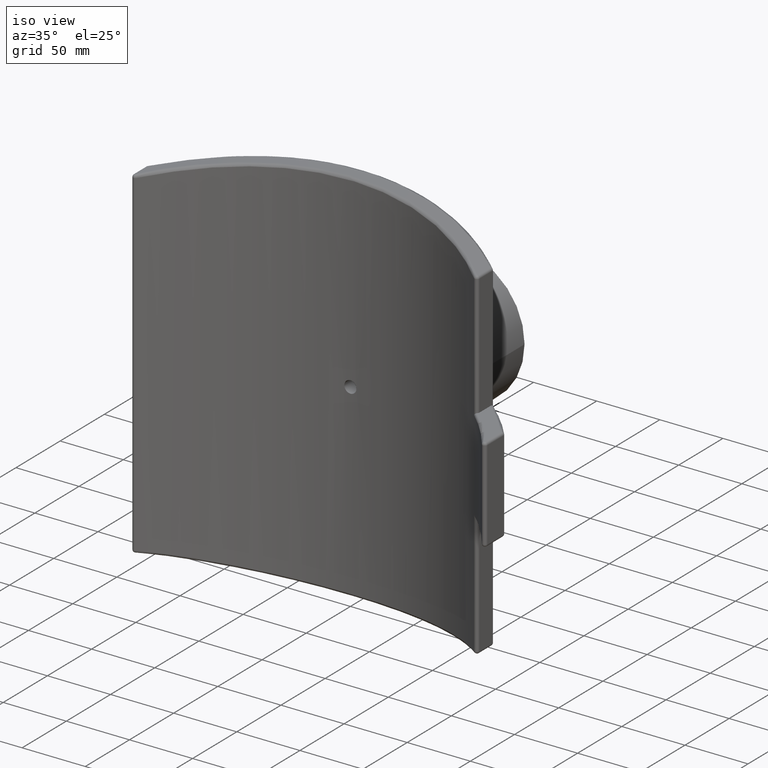
[diagram: clean part render]
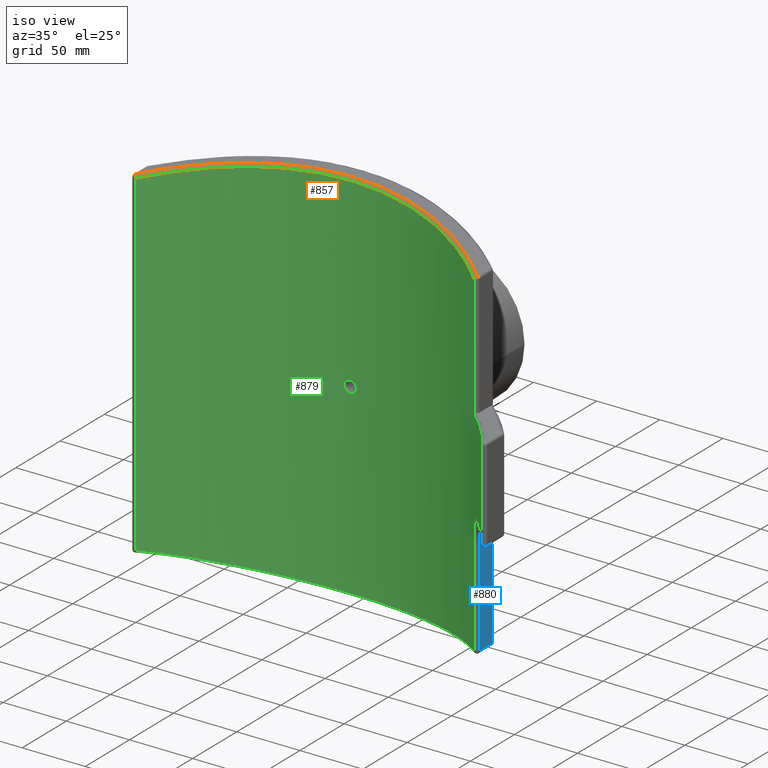
[diagram: same view with three faces highlighted in distinct colors, each labeled with its STEP entity id]
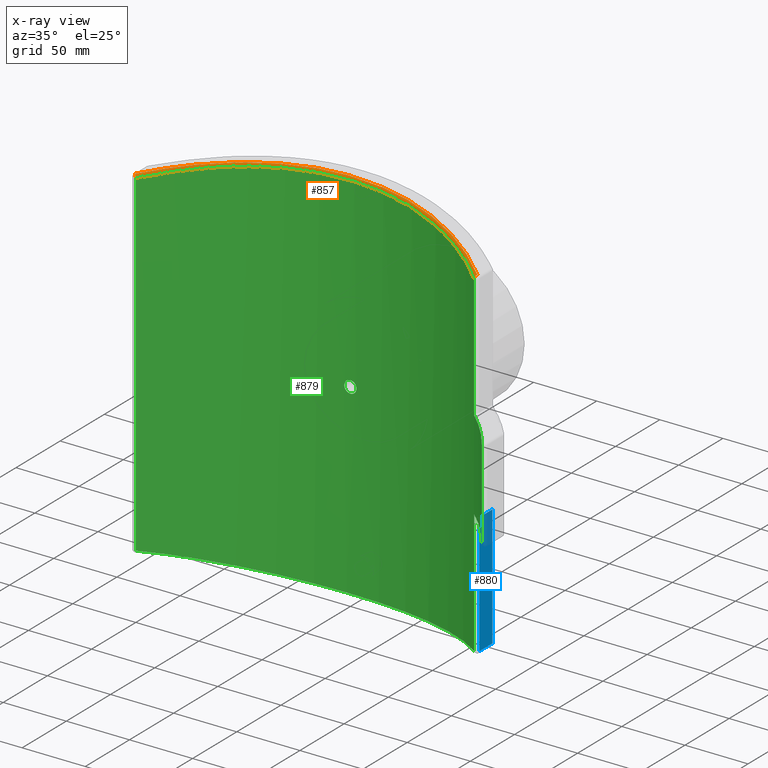
[diagram: x-ray of the same camera — body ghosted, the three highlighted faces saturated]
A machine part, iso view with three faces highlighted in distinct colors.
The next image is the same camera in x-ray (body ghosted, the three faces saturated) — at least one of them is partly hidden behind the body in this view.
Their STEP definitions:

[orange] entity #857 — the highlighted face is a freeform B-spline surface patch.
#92=B_SPLINE_SURFACE_WITH_KNOTS('',3,3,((#1989,#1990,#1991,#1992,#1993,
#1994,#1995,#1996,#1997,#1998),(#1999,#2000,#2001,#2002,#2003,#2004,#2005,
#2006,#2007,#2008),(#2009,#2010,#2011,#2012,#2013,#2014,#2015,#2016,#2017,
#2018),(#2019,#2020,#2021,#2022,#2023,#2024,#2025,#2026,#2027,#2028),(#2029,
#2030,#2031,#2032,#2033,#2034,#2035,#2036,#2037,#2038),(#2039,#2040,#2041,
#2042,#2043,#2044,#2045,#2046,#2047,#2048)),.UNSPECIFIED.,.F.,.F.,.F.,(4,
1,1,4),(4,1,1,1,1,1,1,4),(0.,0.285714285714286,0.571428571428571,1.),(5.62901959477832,
9.88838150774072,14.1477434207031,18.4071053336655,22.6664672466279,26.9258291595903,
31.1851910725527,35.4445529855151),.UNSPECIFIED.);
#106=B_SPLINE_CURVE_WITH_KNOTS('',3,(#2049,#2050,#2051,#2052,#2053,#2054,
#2055,#2056,#2057,#2058),.UNSPECIFIED.,.F.,.F.,(4,1,1,1,1,1,1,4),(-35.4445529855151,
-31.1851910725527,-26.9258291595903,-22.6664672466279,-18.4071053336655,
-14.1477434207031,-9.88838150774072,-5.62901959477832),.UNSPECIFIED.);
#107=B_SPLINE_CURVE_WITH_KNOTS('',3,(#2059,#2060,#2061,#2062,#2063,#2064,
#2065,#2066,#2067,#2068),.UNSPECIFIED.,.F.,.F.,(4,1,1,1,1,1,1,4),(5.62901959484431,
9.88838150779185,14.1477434207394,18.4071053336869,22.6664672466345,26.925829159582,
31.1851910725295,35.4445529854771),.UNSPECIFIED.);
#220=FACE_OUTER_BOUND('',#307,.T.);
#307=EDGE_LOOP('',(#699,#700,#701,#702));
#378=CIRCLE('',#961,1.99999999999997);
#387=CIRCLE('',#975,1.99999999999997);
#448=VERTEX_POINT('',#1897);
#450=VERTEX_POINT('',#1900);
#456=VERTEX_POINT('',#1983);
#458=VERTEX_POINT('',#1986);
#530=EDGE_CURVE('',#450,#448,#378,.F.);
#544=EDGE_CURVE('',#458,#456,#387,.F.);
#546=EDGE_CURVE('',#448,#458,#106,.T.);
#547=EDGE_CURVE('',#456,#450,#107,.T.);
#699=ORIENTED_EDGE('',*,*,#530,.T.);
#700=ORIENTED_EDGE('',*,*,#546,.T.);
#701=ORIENTED_EDGE('',*,*,#544,.T.);
#702=ORIENTED_EDGE('',*,*,#547,.T.);
#857=ADVANCED_FACE('',(#220),#92,.F.);
#961=AXIS2_PLACEMENT_3D('',#1901,#1171,#1172);
#975=AXIS2_PLACEMENT_3D('',#1987,#1203,#1204);
#1171=DIRECTION('center_axis',(-0.733164606172306,-0.660902128207664,-0.160243680645407));
#1172=DIRECTION('ref_axis',(-0.213523833955914,0.,0.976937854898032));
#1203=DIRECTION('center_axis',(0.733164606013992,-0.660902128473588,-0.160243680272979));
#1204=DIRECTION('ref_axis',(-0.669554455445553,-0.742762971070186,0.));
#1897=CARTESIAN_POINT('',(-133.910891089109,148.552594214039,133.392004877097));
#1900=CARTESIAN_POINT('',(-135.677047667913,150.038120156738,135.345880586893));
#1901=CARTESIAN_POINT('Origin',(-135.249999999555,150.03812015658,133.392004877194));
#1983=CARTESIAN_POINT('',(135.677047667428,150.038120156615,135.345880586999));
#1986=CARTESIAN_POINT('',(133.910891089109,148.552594214039,133.392004877097));
#1987=CARTESIAN_POINT('Origin',(135.25,150.038120156179,133.392004877097));
#1989=CARTESIAN_POINT('Ctrl Pts',(135.677047667913,150.038120156179,135.345880586893));
#1990=CARTESIAN_POINT('Ctrl Pts',(125.234803078292,159.421524046993,137.628183487441));
#1991=CARTESIAN_POINT('Ctrl Pts',(102.368545638348,176.033588476469,142.070115242369));
#1992=CARTESIAN_POINT('Ctrl Pts',(63.4404818662849,193.413576810373,147.266424298659));
#1993=CARTESIAN_POINT('Ctrl Pts',(21.4962169969167,202.373410710739,150.118851007305));
#1994=CARTESIAN_POINT('Ctrl Pts',(-21.4959207078474,202.371870863032,150.11747830854));
#1995=CARTESIAN_POINT('Ctrl Pts',(-63.4408506636497,193.414865691707,147.267554194443));
#1996=CARTESIAN_POINT('Ctrl Pts',(-102.368789816726,176.032600149156,142.069382741749));
#1997=CARTESIAN_POINT('Ctrl Pts',(-125.234981340637,159.421363860402,137.628144525639));
#1998=CARTESIAN_POINT('Ctrl Pts',(-135.677047667922,150.038120156171,135.345880586891));
#1999=CARTESIAN_POINT('Ctrl Pts',(135.466223747786,149.79307261536,135.39195919004));
#2000=CARTESIAN_POINT('Ctrl Pts',(125.042066373219,159.165115673108,137.66657321619));
#2001=CARTESIAN_POINT('Ctrl Pts',(102.213827574512,175.75882298581,142.094148706054));
#2002=CARTESIAN_POINT('Ctrl Pts',(63.3462734883247,193.121986905845,147.27451591786));
#2003=CARTESIAN_POINT('Ctrl Pts',(21.464586344003,202.073880860785,150.118495393355));
#2004=CARTESIAN_POINT('Ctrl Pts',(-21.4642900187345,202.072338110463,150.117131398075));
#2005=CARTESIAN_POINT('Ctrl Pts',(-63.3466428161991,193.123278087263,147.27563854636));
#2006=CARTESIAN_POINT('Ctrl Pts',(-102.214069958902,175.757833769964,142.093418740732));
#2007=CARTESIAN_POINT('Ctrl Pts',(-125.042244326792,159.164955680461,137.666534385647));
#2008=CARTESIAN_POINT('Ctrl Pts',(-135.466223747795,149.793072615352,135.391959190038));
#2009=CARTESIAN_POINT('Ctrl Pts',(135.010572410694,149.303993064092,135.32435142809));
#2010=CARTESIAN_POINT('Ctrl Pts',(124.626140023173,158.653317394397,137.587294717861));
#2011=CARTESIAN_POINT('Ctrl Pts',(101.88081813863,175.210289743969,141.993123095802));
#2012=CARTESIAN_POINT('Ctrl Pts',(63.1442038635323,192.539758337245,147.149727604033));
#2013=CARTESIAN_POINT('Ctrl Pts',(21.3968452965855,201.475740980187,149.981202323462));
#2014=CARTESIAN_POINT('Ctrl Pts',(-21.3965503188491,201.474190476697,149.97983971421));
#2015=CARTESIAN_POINT('Ctrl Pts',(-63.1445749454486,192.541055101045,147.150848449706));
#2016=CARTESIAN_POINT('Ctrl Pts',(-101.881065755506,175.209299044657,141.992396273576));
#2017=CARTESIAN_POINT('Ctrl Pts',(-124.62631729859,158.653157789587,137.587256086552));
#2018=CARTESIAN_POINT('Ctrl Pts',(-135.010572410703,149.303993064084,135.324351428088));
#2019=CARTESIAN_POINT('Ctrl Pts',(134.276680867948,148.646843249766,134.676890059353));
#2020=CARTESIAN_POINT('Ctrl Pts',(123.953389435953,157.960627327435,136.936142708231));
#2021=CARTESIAN_POINT('Ctrl Pts',(101.338411135481,174.45724949742,141.335121512438));
#2022=CARTESIAN_POINT('Ctrl Pts',(62.8125996260237,191.727211233487,146.484222898994));
#2023=CARTESIAN_POINT('Ctrl Pts',(21.2853275186399,200.633663937944,149.311750254444));
#2024=CARTESIAN_POINT('Ctrl Pts',(-21.2850304352525,200.632115839363,149.310390528003));
#2025=CARTESIAN_POINT('Ctrl Pts',(-62.8129731353901,191.728507241331,146.485341358955));
#2026=CARTESIAN_POINT('Ctrl Pts',(-101.338642333052,174.456258904186,141.334395740537));
#2027=CARTESIAN_POINT('Ctrl Pts',(-123.953565667617,157.960468329342,136.936104139926));
#2028=CARTESIAN_POINT('Ctrl Pts',(-134.276680867957,148.646843249758,134.676890059351));
#2029=CARTESIAN_POINT('Ctrl Pts',(133.969187015907,148.500044074839,133.875462376056));
#2030=CARTESIAN_POINT('Ctrl Pts',(123.665007550454,157.796184239789,136.144482113502));
#2031=CARTESIAN_POINT('Ctrl Pts',(101.094899026683,174.257940962931,140.561457367451));
#2032=CARTESIAN_POINT('Ctrl Pts',(62.6575343805526,191.486568141245,145.72962486548));
#2033=CARTESIAN_POINT('Ctrl Pts',(21.231929553342,200.370250013673,148.567015303722));
#2034=CARTESIAN_POINT('Ctrl Pts',(-21.2316426427566,200.368697886691,148.565662514953));
#2035=CARTESIAN_POINT('Ctrl Pts',(-62.6579032199466,191.487860840212,145.730737887673));
#2036=CARTESIAN_POINT('Ctrl Pts',(-101.095178953505,174.256959890338,140.560729979536));
#2037=CARTESIAN_POINT('Ctrl Pts',(-123.665183455852,157.7960255429,136.14444337846));
#2038=CARTESIAN_POINT('Ctrl Pts',(-133.969187015917,148.500044074831,133.875462376054));
#2039=CARTESIAN_POINT('Ctrl Pts',(133.910891089109,148.552594214039,133.392004877097));
#2040=CARTESIAN_POINT('Ctrl Pts',(123.604576926162,157.843093115834,135.667124159281));
#2041=CARTESIAN_POINT('Ctrl Pts',(101.035977724692,174.29068165987,140.095074797805));
#2042=CARTESIAN_POINT('Ctrl Pts',(62.6146544596855,191.49859090136,145.275028312001));
#2043=CARTESIAN_POINT('Ctrl Pts',(21.2163930641213,200.369713574989,148.118476920115));
#2044=CARTESIAN_POINT('Ctrl Pts',(-21.2161006319526,200.368188973299,148.117108541962));
#2045=CARTESIAN_POINT('Ctrl Pts',(-62.6150184562832,191.499867021492,145.276154651404));
#2046=CARTESIAN_POINT('Ctrl Pts',(-101.036218724514,174.289703117976,140.094344602753));
#2047=CARTESIAN_POINT('Ctrl Pts',(-123.604752868002,157.842934515249,135.667085320113));
#2048=CARTESIAN_POINT('Ctrl Pts',(-133.910891089118,148.552594214031,133.392004877095));
#2049=CARTESIAN_POINT('Ctrl Pts',(-133.910891089118,148.552594214031,133.392004877095));
#2050=CARTESIAN_POINT('Ctrl Pts',(-123.604752868002,157.842934515249,135.667085320113));
#2051=CARTESIAN_POINT('Ctrl Pts',(-101.036218724514,174.289703117976,140.094344602753));
#2052=CARTESIAN_POINT('Ctrl Pts',(-62.6150184562832,191.499867021492,145.276154651404));
#2053=CARTESIAN_POINT('Ctrl Pts',(-21.2161006319526,200.368188973299,148.117108541962));
#2054=CARTESIAN_POINT('Ctrl Pts',(21.2163930641213,200.369713574989,148.118476920115));
#2055=CARTESIAN_POINT('Ctrl Pts',(62.6146544596855,191.49859090136,145.275028312001));
#2056=CARTESIAN_POINT('Ctrl Pts',(101.035977724692,174.29068165987,140.095074797805));
#2057=CARTESIAN_POINT('Ctrl Pts',(123.604576926162,157.843093115834,135.667124159281));
#2058=CARTESIAN_POINT('Ctrl Pts',(133.910891089109,148.552594214039,133.392004877097));
#2059=CARTESIAN_POINT('Ctrl Pts',(135.677047667428,150.038120156615,135.345880586999));
#2060=CARTESIAN_POINT('Ctrl Pts',(125.234803077776,159.421524047396,137.628183487545));
#2061=CARTESIAN_POINT('Ctrl Pts',(102.368545638348,176.033588476469,142.070115242369));
#2062=CARTESIAN_POINT('Ctrl Pts',(63.4404818662849,193.413576810373,147.266424298659));
#2063=CARTESIAN_POINT('Ctrl Pts',(21.4962169969167,202.373410710739,150.118851007305));
#2064=CARTESIAN_POINT('Ctrl Pts',(-21.4959207078474,202.371870863032,150.11747830854));
#2065=CARTESIAN_POINT('Ctrl Pts',(-63.4408506636497,193.414865691707,147.267554194443));
#2066=CARTESIAN_POINT('Ctrl Pts',(-102.368789816726,176.032600149156,142.069382741749));
#2067=CARTESIAN_POINT('Ctrl Pts',(-125.234981340339,159.421363860634,137.628144525699));
#2068=CARTESIAN_POINT('Ctrl Pts',(-135.677047667642,150.038120156422,135.345880586952));

[blue] entity #880 — the highlighted planar face has unit normal (1, 0, 0).
#33=LINE('',#1776,#63);
#54=LINE('',#2235,#84);
#55=LINE('',#2238,#85);
#58=LINE('',#2243,#88);
#63=VECTOR('',#1104,96.3515375358321);
#84=VECTOR('',#1259,95.8920048770969);
#85=VECTOR('',#1264,14.5110746154759);
#88=VECTOR('',#1271,12.8466166978308);
#114=B_SPLINE_CURVE_WITH_KNOTS('',3,(#2226,#2227,#2228,#2229,#2230,#2231),
 .UNSPECIFIED.,.F.,.F.,(4,2,4),(-0.3426547615418,-0.237671393353548,-0.178267981115463),
 .UNSPECIFIED.);
#154=PLANE('',#1006);
#243=FACE_OUTER_BOUND('',#332,.T.);
#332=EDGE_LOOP('',(#800,#801,#802,#803,#804));
#429=VERTEX_POINT('',#1771);
#430=VERTEX_POINT('',#1775);
#431=VERTEX_POINT('',#1788);
#466=VERTEX_POINT('',#2224);
#467=VERTEX_POINT('',#2234);
#503=EDGE_CURVE('',#430,#429,#33,.T.);
#574=EDGE_CURVE('',#466,#430,#114,.T.);
#576=EDGE_CURVE('',#431,#467,#54,.T.);
#578=EDGE_CURVE('',#429,#431,#55,.T.);
#581=EDGE_CURVE('',#466,#467,#58,.T.);
#800=ORIENTED_EDGE('',*,*,#503,.F.);
#801=ORIENTED_EDGE('',*,*,#574,.F.);
#802=ORIENTED_EDGE('',*,*,#581,.T.);
#803=ORIENTED_EDGE('',*,*,#576,.F.);
#804=ORIENTED_EDGE('',*,*,#578,.F.);
#880=ADVANCED_FACE('',(#243),#154,.T.);
#1006=AXIS2_PLACEMENT_3D('',#2250,#1284,#1285);
#1104=DIRECTION('',(0.,0.,-1.));
#1259=DIRECTION('',(0.,0.,1.));
#1264=DIRECTION('',(0.,-1.,0.));
#1271=DIRECTION('',(0.,-1.,0.));
#1284=DIRECTION('center_axis',(1.,0.,0.));
#1285=DIRECTION('ref_axis',(0.,1.,0.));
#1771=CARTESIAN_POINT('',(137.25,164.549194771655,-133.392004877097));
#1775=CARTESIAN_POINT('',(137.25,164.549194771655,-37.0404673412648));
#1776=CARTESIAN_POINT('',(137.25,164.549194771655,0.));
#1788=CARTESIAN_POINT('',(137.25,150.038120156179,-133.392004877097));
#2224=CARTESIAN_POINT('',(137.25,162.88473685401,-37.5));
#2226=CARTESIAN_POINT('Ctrl Pts',(137.25,162.88473685401,-37.5));
#2227=CARTESIAN_POINT('Ctrl Pts',(137.25,163.234681414637,-37.5));
#2228=CARTESIAN_POINT('Ctrl Pts',(137.25,163.649187455461,-37.4327031675438));
#2229=CARTESIAN_POINT('Ctrl Pts',(137.25,164.165752159976,-37.2499010546377));
#2230=CARTESIAN_POINT('Ctrl Pts',(137.25,164.368245943333,-37.1555248492732));
#2231=CARTESIAN_POINT('Ctrl Pts',(137.25,164.549194771655,-37.0404673412648));
#2234=CARTESIAN_POINT('',(137.25,150.038120156179,-37.5));
#2235=CARTESIAN_POINT('',(137.25,150.038120156179,0.));
#2238=CARTESIAN_POINT('',(137.25,0.,-133.392004877097));
#2243=CARTESIAN_POINT('',(137.25,141.631632000128,-37.5));
#2250=CARTESIAN_POINT('Origin',(137.25,145.473150443647,0.));

[green] entity #879 — the highlighted cylindrical surface (partial cylindrical patch) has radius 200 mm, axis along (0, 0, 1).
#37=LINE('',#1978,#67);
#41=LINE('',#2073,#71);
#48=LINE('',#2110,#78);
#53=LINE('',#2233,#83);
#67=VECTOR('',#1194,71.);
#71=VECTOR('',#1210,97.8920048770969);
#78=VECTOR('',#1233,266.784009754194);
#83=VECTOR('',#1258,97.8920048770969);
#101=B_SPLINE_CURVE_WITH_KNOTS('',3,(#1666,#1667,#1668,#1669,#1670,#1671,
#1672,#1673,#1674,#1675,#1676,#1677,#1678,#1679,#1680,#1681,#1682,#1683,
#1684,#1685,#1686,#1687,#1688,#1689,#1690,#1691,#1692,#1693,#1694,#1695,
#1696,#1697,#1698,#1699),.UNSPECIFIED.,.T.,.F.,(4,2,2,2,2,2,2,2,2,2,2,2,
2,2,2,2,4),(0.,0.180817060233591,0.361634120467183,0.542451178676776,0.723268236886369,
0.904085295095962,1.08490235330556,1.26571941353915,1.44653647377274,1.62735353400633,
1.80817059423992,1.98898765244951,2.16980471065911,2.3506217688687,2.53143882707829,
2.71225588731188,2.89307294754548),.UNSPECIFIED.);
#106=B_SPLINE_CURVE_WITH_KNOTS('',3,(#2049,#2050,#2051,#2052,#2053,#2054,
#2055,#2056,#2057,#2058),.UNSPECIFIED.,.F.,.F.,(4,1,1,1,1,1,1,4),(-35.4445529855151,
-31.1851910725527,-26.9258291595903,-22.6664672466279,-18.4071053336655,
-14.1477434207031,-9.88838150774072,-5.62901959477832),.UNSPECIFIED.);
#112=B_SPLINE_CURVE_WITH_KNOTS('',3,(#2203,#2204,#2205,#2206,#2207,#2208,
#2209,#2210,#2211,#2212),.UNSPECIFIED.,.F.,.F.,(4,1,1,1,1,1,1,4),(-33.5496110408139,
-29.2902491278514,-25.030887214889,-20.7715253019266,-16.5121633889642,
-12.2528014760018,-7.99343956303935,-3.73407765007693),.UNSPECIFIED.);
#141=CYLINDRICAL_SURFACE('',#1005,200.);
#178=FACE_BOUND('',#331,.T.);
#242=FACE_OUTER_BOUND('',#330,.T.);
#330=EDGE_LOOP('',(#791,#792,#793,#794,#795,#796,#797,#798));
#331=EDGE_LOOP('',(#799));
#390=CIRCLE('',#980,200.);
#393=CIRCLE('',#988,200.);
#416=VERTEX_POINT('',#1665);
#433=VERTEX_POINT('',#1791);
#438=VERTEX_POINT('',#1867);
#447=VERTEX_POINT('',#1893);
#448=VERTEX_POINT('',#1897);
#453=VERTEX_POINT('',#1970);
#458=VERTEX_POINT('',#1986);
#460=VERTEX_POINT('',#2072);
#464=VERTEX_POINT('',#2114);
#488=EDGE_CURVE('',#416,#416,#101,.T.);
#540=EDGE_CURVE('',#453,#447,#37,.T.);
#546=EDGE_CURVE('',#448,#458,#106,.T.);
#549=EDGE_CURVE('',#458,#460,#41,.T.);
#552=EDGE_CURVE('',#460,#453,#390,.T.);
#561=EDGE_CURVE('',#438,#448,#48,.T.);
#563=EDGE_CURVE('',#447,#464,#393,.T.);
#571=EDGE_CURVE('',#433,#438,#112,.T.);
#575=EDGE_CURVE('',#464,#433,#53,.T.);
#791=ORIENTED_EDGE('',*,*,#546,.F.);
#792=ORIENTED_EDGE('',*,*,#561,.F.);
#793=ORIENTED_EDGE('',*,*,#571,.F.);
#794=ORIENTED_EDGE('',*,*,#575,.F.);
#795=ORIENTED_EDGE('',*,*,#563,.F.);
#796=ORIENTED_EDGE('',*,*,#540,.F.);
#797=ORIENTED_EDGE('',*,*,#552,.F.);
#798=ORIENTED_EDGE('',*,*,#549,.F.);
#799=ORIENTED_EDGE('',*,*,#488,.T.);
#879=ADVANCED_FACE('',(#242,#178),#141,.F.);
#980=AXIS2_PLACEMENT_3D('',#2089,#1215,#1216);
#988=AXIS2_PLACEMENT_3D('',#2115,#1238,#1239);
#1005=AXIS2_PLACEMENT_3D('',#2249,#1282,#1283);
#1194=DIRECTION('',(0.,0.,-1.));
#1210=DIRECTION('',(0.,0.,-1.));
#1215=DIRECTION('center_axis',(0.,0.,-1.));
#1216=DIRECTION('ref_axis',(0.767961388285212,0.64049614058404,0.));
#1233=DIRECTION('',(0.,0.,1.));
#1238=DIRECTION('center_axis',(0.,0.,1.));
#1239=DIRECTION('ref_axis',(0.767961388285212,0.64049614058404,0.));
#1258=DIRECTION('',(0.,0.,-1.));
#1282=DIRECTION('center_axis',(0.,0.,1.));
#1283=DIRECTION('ref_axis',(-1.,0.,0.));
#1665=CARTESIAN_POINT('',(4.8,199.94239170321,-1.38777878078145E-16));
#1666=CARTESIAN_POINT('Ctrl Pts',(4.8,199.94239170321,-1.38777878078145E-16));
#1667=CARTESIAN_POINT('Ctrl Pts',(4.8,199.94239170321,-0.602723534111971));
#1668=CARTESIAN_POINT('Ctrl Pts',(4.67954083216235,199.945397343844,-1.24560563054448));
#1669=CARTESIAN_POINT('Ctrl Pts',(4.1896760719842,199.956261806887,-2.42821955680468));
#1670=CARTESIAN_POINT('Ctrl Pts',(3.8202717566496,199.963964722883,-2.96795334274125));
#1671=CARTESIAN_POINT('Ctrl Pts',(2.96795334751152,199.978431129239,-3.82027175187934));
#1672=CARTESIAN_POINT('Ctrl Pts',(2.42821955905803,199.986133077268,-4.18967607003134));
#1673=CARTESIAN_POINT('Ctrl Pts',(1.2456056265593,199.996995327551,-4.67954083483257));
#1674=CARTESIAN_POINT('Ctrl Pts',(0.60272352736531,200.,-4.8));
#1675=CARTESIAN_POINT('Ctrl Pts',(-0.602723527365311,200.,-4.8));
#1676=CARTESIAN_POINT('Ctrl Pts',(-1.2456056265593,199.996995327551,-4.67954083483257));
#1677=CARTESIAN_POINT('Ctrl Pts',(-2.42821955905804,199.986133077268,-4.18967607003134));
#1678=CARTESIAN_POINT('Ctrl Pts',(-2.96795334751152,199.978431129239,-3.82027175187934));
#1679=CARTESIAN_POINT('Ctrl Pts',(-3.8202717566496,199.963964722883,-2.96795334274125));
#1680=CARTESIAN_POINT('Ctrl Pts',(-4.1896760719842,199.956261806887,-2.42821955680468));
#1681=CARTESIAN_POINT('Ctrl Pts',(-4.67954083216235,199.945397343844,-1.24560563054448));
#1682=CARTESIAN_POINT('Ctrl Pts',(-4.8,199.94239170321,-0.602723534111971));
#1683=CARTESIAN_POINT('Ctrl Pts',(-4.8,199.94239170321,0.602723534111971));
#1684=CARTESIAN_POINT('Ctrl Pts',(-4.67954083216235,199.945397343844,1.24560563054448));
#1685=CARTESIAN_POINT('Ctrl Pts',(-4.1896760719842,199.956261806887,2.42821955680468));
#1686=CARTESIAN_POINT('Ctrl Pts',(-3.8202717566496,199.963964722883,2.96795334274125));
#1687=CARTESIAN_POINT('Ctrl Pts',(-2.96795334751152,199.978431129239,3.82027175187934));
#1688=CARTESIAN_POINT('Ctrl Pts',(-2.42821955905804,199.986133077268,4.18967607003134));
#1689=CARTESIAN_POINT('Ctrl Pts',(-1.2456056265593,199.996995327551,4.67954083483257));
#1690=CARTESIAN_POINT('Ctrl Pts',(-0.602723527365311,200.,4.8));
#1691=CARTESIAN_POINT('Ctrl Pts',(0.602723527365309,200.,4.8));
#1692=CARTESIAN_POINT('Ctrl Pts',(1.2456056265593,199.996995327551,4.67954083483257));
#1693=CARTESIAN_POINT('Ctrl Pts',(2.42821955905803,199.986133077268,4.18967607003134));
#1694=CARTESIAN_POINT('Ctrl Pts',(2.96795334751152,199.978431129239,3.82027175187934));
#1695=CARTESIAN_POINT('Ctrl Pts',(3.8202717566496,199.963964722883,2.96795334274125));
#1696=CARTESIAN_POINT('Ctrl Pts',(4.1896760719842,199.956261806887,2.42821955680468));
#1697=CARTESIAN_POINT('Ctrl Pts',(4.67954083216235,199.945397343844,1.24560563054448));
#1698=CARTESIAN_POINT('Ctrl Pts',(4.8,199.94239170321,0.602723534111971));
#1699=CARTESIAN_POINT('Ctrl Pts',(4.8,199.94239170321,-2.77555756156289E-16));
#1791=CARTESIAN_POINT('',(133.910891089109,148.552594214039,-133.392004877097));
#1867=CARTESIAN_POINT('',(-133.910891089109,148.552594214039,-133.392004877097));
#1893=CARTESIAN_POINT('',(164.108910891089,114.316513969507,-35.5));
#1897=CARTESIAN_POINT('',(-133.910891089109,148.552594214039,133.392004877097));
#1970=CARTESIAN_POINT('',(164.108910891089,114.316513969507,35.5));
#1978=CARTESIAN_POINT('',(164.108910891089,114.316513969507,0.));
#1986=CARTESIAN_POINT('',(133.910891089109,148.552594214039,133.392004877097));
#2049=CARTESIAN_POINT('Ctrl Pts',(-133.910891089118,148.552594214031,133.392004877095));
#2050=CARTESIAN_POINT('Ctrl Pts',(-123.604752868002,157.842934515249,135.667085320113));
#2051=CARTESIAN_POINT('Ctrl Pts',(-101.036218724514,174.289703117976,140.094344602753));
#2052=CARTESIAN_POINT('Ctrl Pts',(-62.6150184562832,191.499867021492,145.276154651404));
#2053=CARTESIAN_POINT('Ctrl Pts',(-21.2161006319526,200.368188973299,148.117108541962));
#2054=CARTESIAN_POINT('Ctrl Pts',(21.2163930641213,200.369713574989,148.118476920115));
#2055=CARTESIAN_POINT('Ctrl Pts',(62.6146544596855,191.49859090136,145.275028312001));
#2056=CARTESIAN_POINT('Ctrl Pts',(101.035977724692,174.29068165987,140.095074797805));
#2057=CARTESIAN_POINT('Ctrl Pts',(123.604576926162,157.843093115834,135.667124159281));
#2058=CARTESIAN_POINT('Ctrl Pts',(133.910891089109,148.552594214039,133.392004877097));
#2072=CARTESIAN_POINT('',(133.910891089109,148.552594214039,35.5));
#2073=CARTESIAN_POINT('',(133.910891089109,148.552594214039,0.));
#2089=CARTESIAN_POINT('Origin',(0.,0.,35.5));
#2110=CARTESIAN_POINT('',(-133.910891089109,148.552594214039,0.));
#2114=CARTESIAN_POINT('',(133.910891089109,148.552594214039,-35.5));
#2115=CARTESIAN_POINT('Origin',(0.,0.,-35.5));
#2203=CARTESIAN_POINT('Ctrl Pts',(133.910891089119,148.55259421403,-133.392004877095));
#2204=CARTESIAN_POINT('Ctrl Pts',(123.604576926173,157.843093115826,-135.667124159279));
#2205=CARTESIAN_POINT('Ctrl Pts',(101.035539059808,174.290130943579,-140.094467062208));
#2206=CARTESIAN_POINT('Ctrl Pts',(62.6152349368051,191.499645031378,-145.276092033215));
#2207=CARTESIAN_POINT('Ctrl Pts',(21.2159953369663,200.368340063816,-148.117151951753));
#2208=CARTESIAN_POINT('Ctrl Pts',(-21.2164980577146,200.36954271126,-148.118427718073));
#2209=CARTESIAN_POINT('Ctrl Pts',(-62.614475081052,191.498774741084,-145.275080229167));
#2210=CARTESIAN_POINT('Ctrl Pts',(-101.036607213343,174.290267290732,-140.09495688298));
#2211=CARTESIAN_POINT('Ctrl Pts',(-123.604752867993,157.842934515257,-135.667085320115));
#2212=CARTESIAN_POINT('Ctrl Pts',(-133.910891089109,148.552594214039,-133.392004877097));
#2233=CARTESIAN_POINT('',(133.910891089109,148.552594214039,0.));
#2249=CARTESIAN_POINT('Origin',(0.,0.,0.));